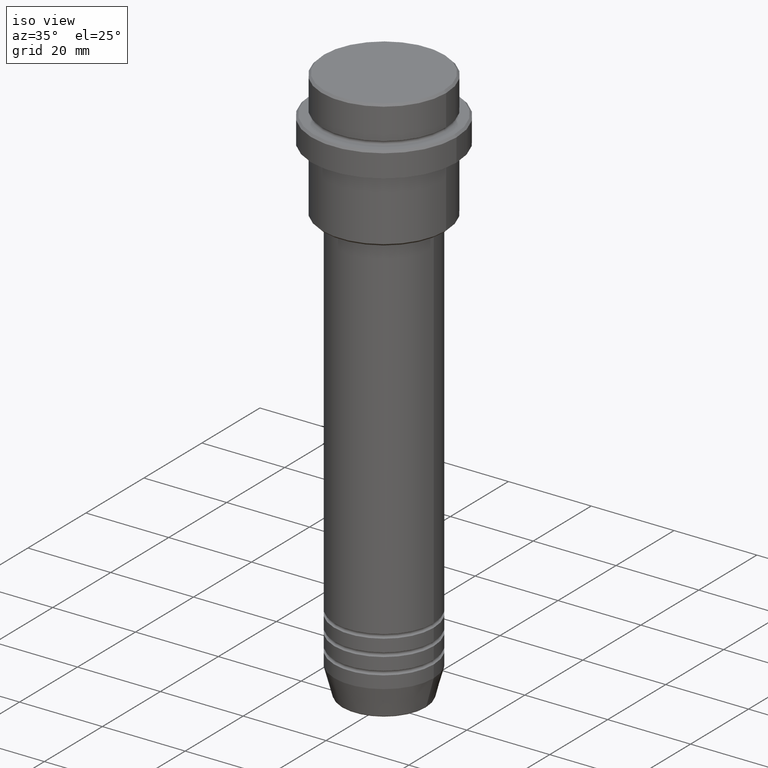
[diagram: clean part render]
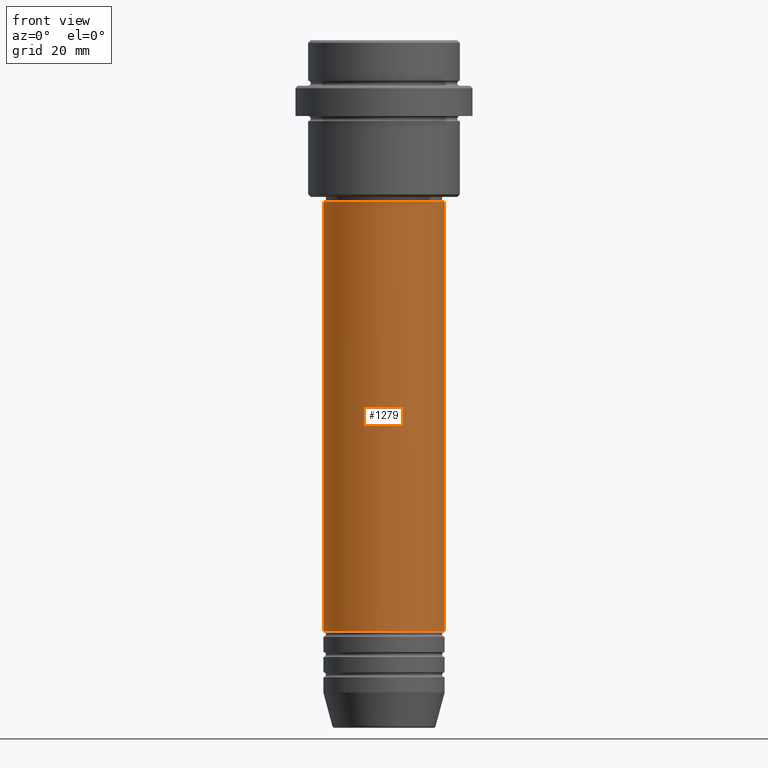
[diagram: tour spotlight — one face highlighted and labeled with its STEP entity id]
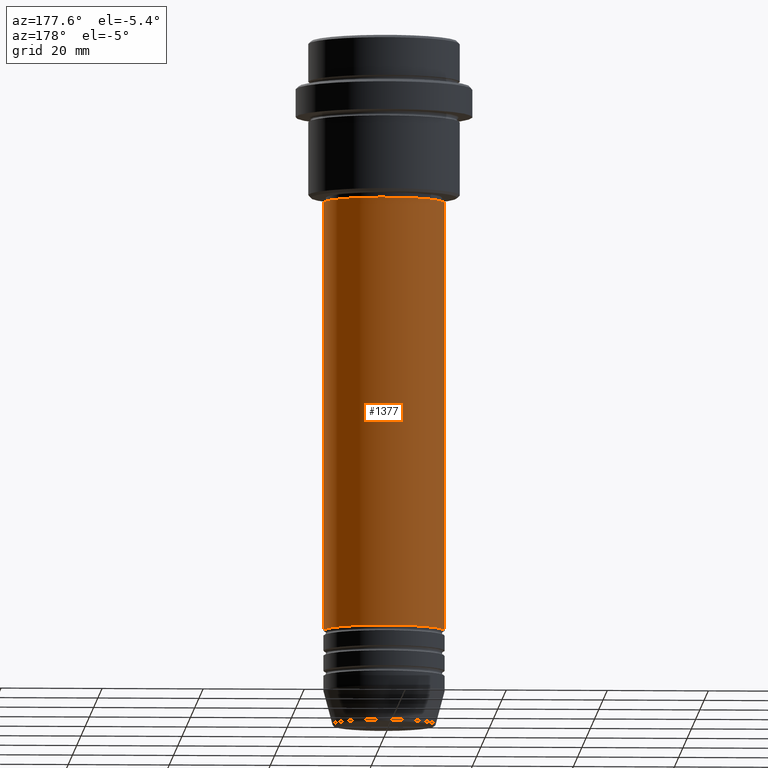
[diagram: tour spotlight — one face highlighted and labeled with its STEP entity id]
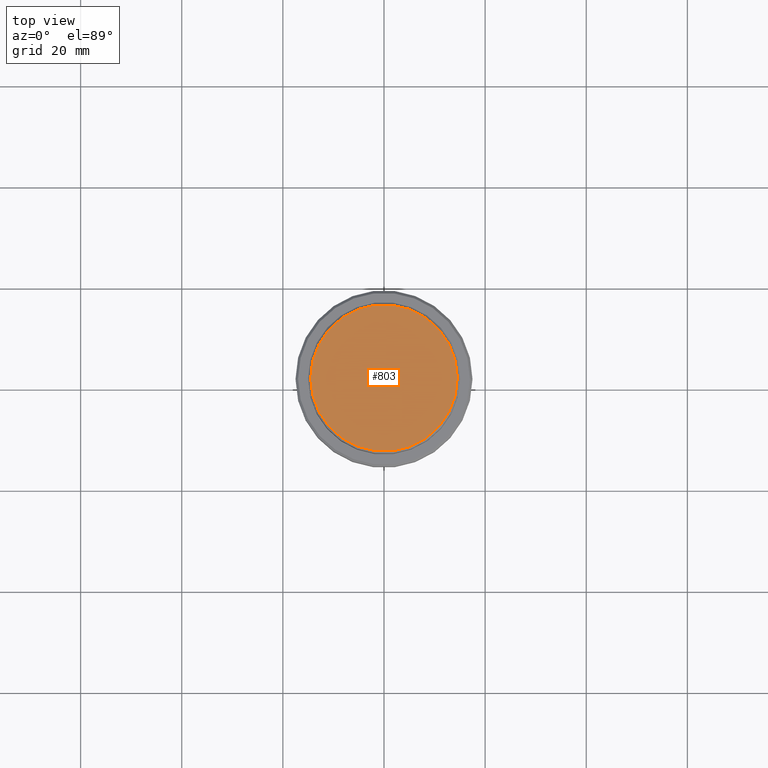
[diagram: tour spotlight — one face highlighted and labeled with its STEP entity id]
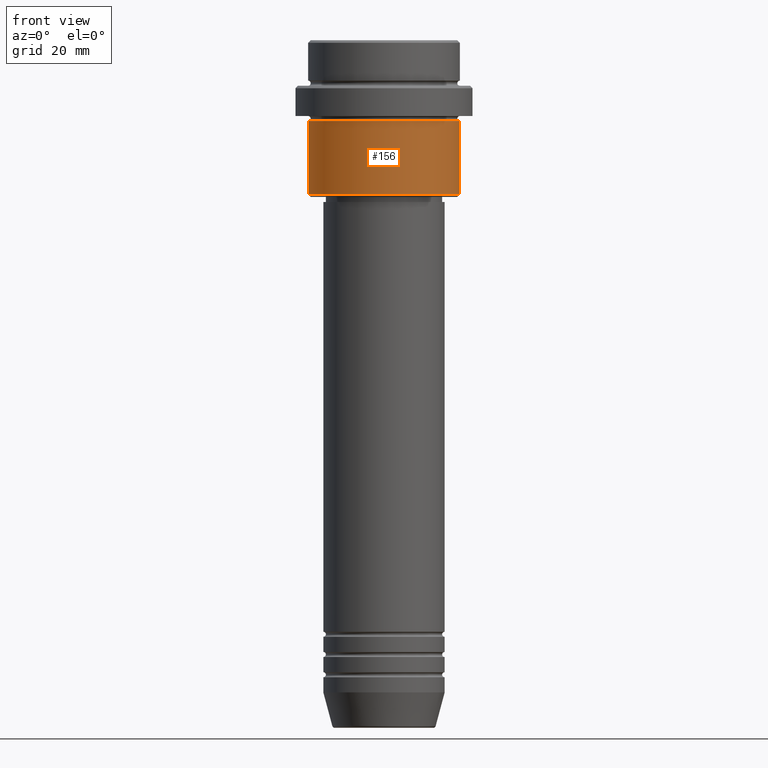
[diagram: tour spotlight — one face highlighted and labeled with its STEP entity id]
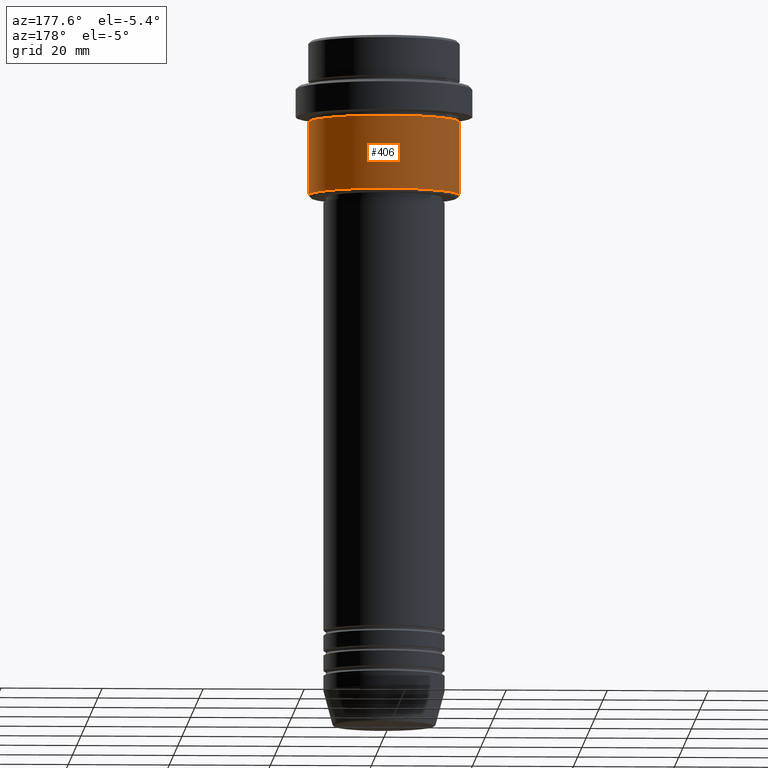
[diagram: tour spotlight — one face highlighted and labeled with its STEP entity id]
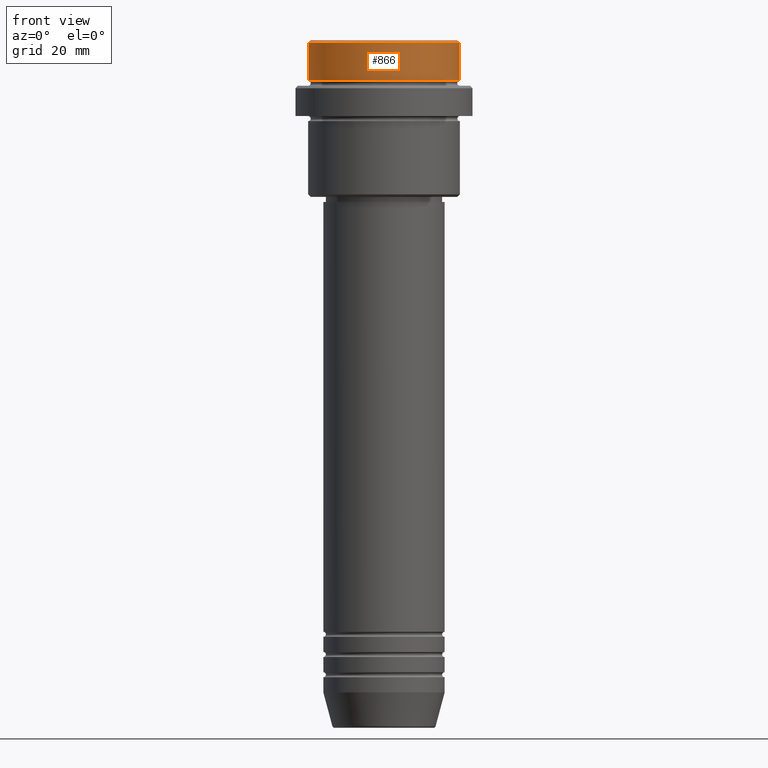
[diagram: tour spotlight — one face highlighted and labeled with its STEP entity id]
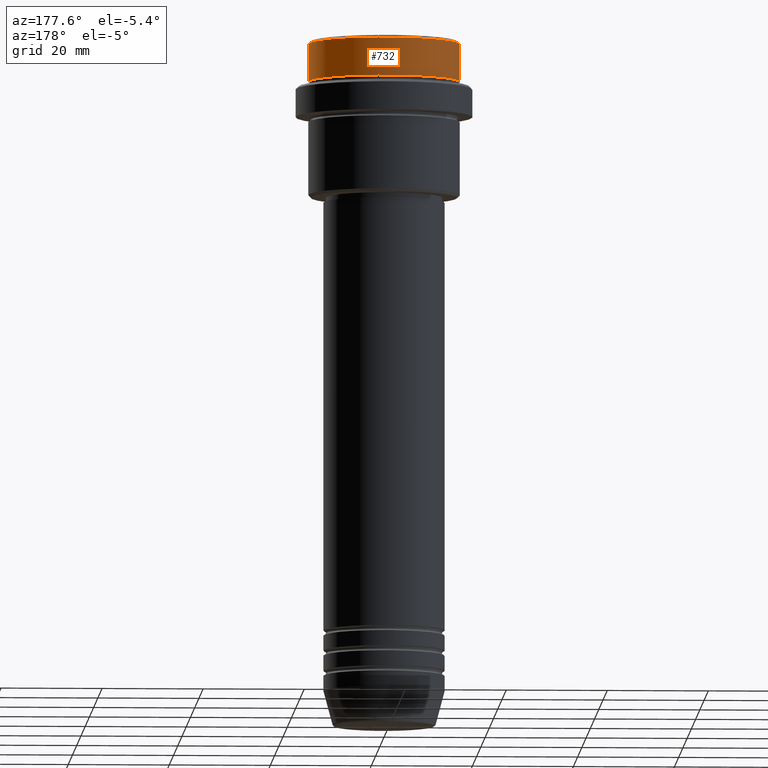
[diagram: tour spotlight — one face highlighted and labeled with its STEP entity id]
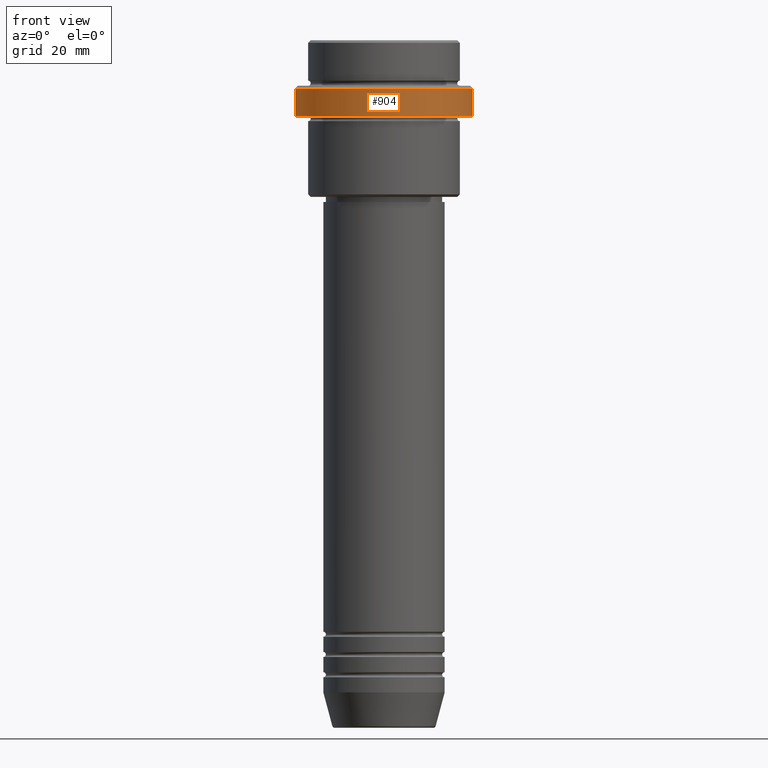
[diagram: tour spotlight — one face highlighted and labeled with its STEP entity id]
A machine part: a face-by-face anatomy tour. The part has 52 B-rep faces; the first image is the clean iso view, then the 8 largest visible faces are spotlighted one at a time (largest first), each with its STEP entity span.

Face 1 — front view, entity #1279. In plain terms, the highlighted cylindrical surface (partial cylindrical patch) has radius 12 mm, axis along (-0, -0, 1).
Definition (entity closure, byte-faithful):
#30 = CARTESIAN_POINT ( 'NONE',  ( 12.00000000000000000, 0.000000000000000000, 0.000000000000000000 ) ) ;
#94 = VERTEX_POINT ( 'NONE', #99 ) ;
#99 = CARTESIAN_POINT ( 'NONE',  ( 11.99999999999999822, 0.000000000000000000, -32.00000000000000000 ) ) ;
#127 = CARTESIAN_POINT ( 'NONE',  ( -12.00000000000000000, 1.469576158976823947E-15, -116.9999999999999005 ) ) ;
#226 = CARTESIAN_POINT ( 'NONE',  ( 0.000000000000000000, 0.000000000000000000, 0.000000000000000000 ) ) ;
#314 = DIRECTION ( 'NONE',  ( -0.000000000000000000, -0.000000000000000000, 1.000000000000000000 ) ) ;
#344 = DIRECTION ( 'NONE',  ( 1.000000000000000000, 0.000000000000000000, 0.000000000000000000 ) ) ;
#356 = FACE_OUTER_BOUND ( 'NONE', #1340, .T. ) ;
#362 = EDGE_CURVE ( 'NONE', #989, #94, #994, .T. ) ;
#384 = ORIENTED_EDGE ( 'NONE', *, *, #1057, .F. ) ;
#424 = CARTESIAN_POINT ( 'NONE',  ( 0.000000000000000000, 0.000000000000000000, -116.9999999999999005 ) ) ;
#426 = AXIS2_PLACEMENT_3D ( 'NONE', #589, #567, #344 ) ;
#471 = AXIS2_PLACEMENT_3D ( 'NONE', #424, #645, #1198 ) ;
#567 = DIRECTION ( 'NONE',  ( -0.000000000000000000, -0.000000000000000000, 1.000000000000000000 ) ) ;
#583 = DIRECTION ( 'NONE',  ( -0.000000000000000000, -0.000000000000000000, 1.000000000000000000 ) ) ;
#589 = CARTESIAN_POINT ( 'NONE',  ( 0.000000000000000000, 0.000000000000000000, -32.00000000000000000 ) ) ;
#645 = DIRECTION ( 'NONE',  ( -0.000000000000000000, -0.000000000000000000, 1.000000000000000000 ) ) ;
#655 = ORIENTED_EDGE ( 'NONE', *, *, #1317, .F. ) ;
#716 = EDGE_CURVE ( 'NONE', #748, #989, #1156, .T. ) ;
#748 = VERTEX_POINT ( 'NONE', #127 ) ;
#795 = DIRECTION ( 'NONE',  ( -0.000000000000000000, -0.000000000000000000, 1.000000000000000000 ) ) ;
#845 = VECTOR ( 'NONE', #795, 1000.000000000000000 ) ;
#849 = CIRCLE ( 'NONE', #426, 11.99999999999999822 ) ;
#853 = CARTESIAN_POINT ( 'NONE',  ( -12.00000000000000000, 1.469576158976823947E-15, 0.000000000000000000 ) ) ;
#896 = VERTEX_POINT ( 'NONE', #1249 ) ;
#989 = VERTEX_POINT ( 'NONE', #1265 ) ;
#994 = LINE ( 'NONE', #30, #845 ) ;
#1057 = EDGE_CURVE ( 'NONE', #748, #896, #1403, .T. ) ;
#1121 = ORIENTED_EDGE ( 'NONE', *, *, #716, .T. ) ;
#1123 = DIRECTION ( 'NONE',  ( 1.000000000000000000, 0.000000000000000000, 0.000000000000000000 ) ) ;
#1135 = VECTOR ( 'NONE', #314, 1000.000000000000000 ) ;
#1156 = CIRCLE ( 'NONE', #471, 12.00000000000000000 ) ;
#1198 = DIRECTION ( 'NONE',  ( 1.000000000000000000, 0.000000000000000000, 0.000000000000000000 ) ) ;
#1206 = CYLINDRICAL_SURFACE ( 'NONE', #1281, 12.00000000000000000 ) ;
#1249 = CARTESIAN_POINT ( 'NONE',  ( -11.99999999999999822, 1.469576158976823750E-15, -32.00000000000000000 ) ) ;
#1265 = CARTESIAN_POINT ( 'NONE',  ( 12.00000000000000000, 0.000000000000000000, -116.9999999999999005 ) ) ;
#1279 = ADVANCED_FACE ( 'NONE', ( #356 ), #1206, .T. ) ;
#1281 = AXIS2_PLACEMENT_3D ( 'NONE', #226, #583, #1123 ) ;
#1317 = EDGE_CURVE ( 'NONE', #896, #94, #849, .T. ) ;
#1340 = EDGE_LOOP ( 'NONE', ( #384, #1121, #1391, #655 ) ) ;
#1391 = ORIENTED_EDGE ( 'NONE', *, *, #362, .T. ) ;
#1403 = LINE ( 'NONE', #853, #1135 ) ;

Face 2 — auxiliary view, entity #1377. In plain terms, the highlighted cylindrical surface (partial cylindrical patch) has radius 12 mm, axis along (-0, -0, 1).
Definition (entity closure, byte-faithful):
#30 = CARTESIAN_POINT ( 'NONE',  ( 12.00000000000000000, 0.000000000000000000, 0.000000000000000000 ) ) ;
#75 = FACE_OUTER_BOUND ( 'NONE', #1014, .T. ) ;
#94 = VERTEX_POINT ( 'NONE', #99 ) ;
#99 = CARTESIAN_POINT ( 'NONE',  ( 11.99999999999999822, 0.000000000000000000, -32.00000000000000000 ) ) ;
#110 = AXIS2_PLACEMENT_3D ( 'NONE', #507, #725, #940 ) ;
#114 = EDGE_CURVE ( 'NONE', #989, #748, #420, .T. ) ;
#127 = CARTESIAN_POINT ( 'NONE',  ( -12.00000000000000000, 1.469576158976823947E-15, -116.9999999999999005 ) ) ;
#228 = ORIENTED_EDGE ( 'NONE', *, *, #560, .F. ) ;
#272 = CARTESIAN_POINT ( 'NONE',  ( 0.000000000000000000, 0.000000000000000000, -116.9999999999999005 ) ) ;
#314 = DIRECTION ( 'NONE',  ( -0.000000000000000000, -0.000000000000000000, 1.000000000000000000 ) ) ;
#328 = AXIS2_PLACEMENT_3D ( 'NONE', #272, #1141, #1241 ) ;
#362 = EDGE_CURVE ( 'NONE', #989, #94, #994, .T. ) ;
#420 = CIRCLE ( 'NONE', #328, 12.00000000000000000 ) ;
#507 = CARTESIAN_POINT ( 'NONE',  ( 0.000000000000000000, 0.000000000000000000, -32.00000000000000000 ) ) ;
#532 = AXIS2_PLACEMENT_3D ( 'NONE', #1361, #914, #821 ) ;
#560 = EDGE_CURVE ( 'NONE', #94, #896, #1319, .T. ) ;
#725 = DIRECTION ( 'NONE',  ( -0.000000000000000000, -0.000000000000000000, 1.000000000000000000 ) ) ;
#748 = VERTEX_POINT ( 'NONE', #127 ) ;
#795 = DIRECTION ( 'NONE',  ( -0.000000000000000000, -0.000000000000000000, 1.000000000000000000 ) ) ;
#807 = ORIENTED_EDGE ( 'NONE', *, *, #1057, .T. ) ;
#821 = DIRECTION ( 'NONE',  ( 1.000000000000000000, 0.000000000000000000, 0.000000000000000000 ) ) ;
#845 = VECTOR ( 'NONE', #795, 1000.000000000000000 ) ;
#853 = CARTESIAN_POINT ( 'NONE',  ( -12.00000000000000000, 1.469576158976823947E-15, 0.000000000000000000 ) ) ;
#896 = VERTEX_POINT ( 'NONE', #1249 ) ;
#914 = DIRECTION ( 'NONE',  ( -0.000000000000000000, -0.000000000000000000, 1.000000000000000000 ) ) ;
#940 = DIRECTION ( 'NONE',  ( 1.000000000000000000, 0.000000000000000000, 0.000000000000000000 ) ) ;
#989 = VERTEX_POINT ( 'NONE', #1265 ) ;
#994 = LINE ( 'NONE', #30, #845 ) ;
#1014 = EDGE_LOOP ( 'NONE', ( #1120, #807, #228, #1383 ) ) ;
#1057 = EDGE_CURVE ( 'NONE', #748, #896, #1403, .T. ) ;
#1120 = ORIENTED_EDGE ( 'NONE', *, *, #114, .T. ) ;
#1135 = VECTOR ( 'NONE', #314, 1000.000000000000000 ) ;
#1141 = DIRECTION ( 'NONE',  ( -0.000000000000000000, -0.000000000000000000, 1.000000000000000000 ) ) ;
#1241 = DIRECTION ( 'NONE',  ( 1.000000000000000000, 0.000000000000000000, 0.000000000000000000 ) ) ;
#1249 = CARTESIAN_POINT ( 'NONE',  ( -11.99999999999999822, 1.469576158976823750E-15, -32.00000000000000000 ) ) ;
#1265 = CARTESIAN_POINT ( 'NONE',  ( 12.00000000000000000, 0.000000000000000000, -116.9999999999999005 ) ) ;
#1268 = CYLINDRICAL_SURFACE ( 'NONE', #532, 12.00000000000000000 ) ;
#1319 = CIRCLE ( 'NONE', #110, 11.99999999999999822 ) ;
#1361 = CARTESIAN_POINT ( 'NONE',  ( 0.000000000000000000, 0.000000000000000000, 0.000000000000000000 ) ) ;
#1377 = ADVANCED_FACE ( 'NONE', ( #75 ), #1268, .T. ) ;
#1383 = ORIENTED_EDGE ( 'NONE', *, *, #362, .F. ) ;
#1403 = LINE ( 'NONE', #853, #1135 ) ;

Face 3 — top view, entity #803. In plain terms, the highlighted planar face has unit normal (0, -0, 1).
Definition (entity closure, byte-faithful):
#20 = DIRECTION ( 'NONE',  ( 0.000000000000000000, -0.000000000000000000, 1.000000000000000000 ) ) ;
#116 = DIRECTION ( 'NONE',  ( 1.000000000000000000, 0.000000000000000000, 0.000000000000000000 ) ) ;
#165 = VERTEX_POINT ( 'NONE', #1074 ) ;
#227 = FACE_OUTER_BOUND ( 'NONE', #1264, .T. ) ;
#403 = AXIS2_PLACEMENT_3D ( 'NONE', #510, #1142, #831 ) ;
#422 = CARTESIAN_POINT ( 'NONE',  ( 14.49999999999999645, 1.806354028742345802E-15, 0.000000000000000000 ) ) ;
#510 = CARTESIAN_POINT ( 'NONE',  ( 0.000000000000000000, 0.000000000000000000, 0.000000000000000000 ) ) ;
#553 = CARTESIAN_POINT ( 'NONE',  ( 0.000000000000000000, 0.000000000000000000, 0.000000000000000000 ) ) ;
#585 = CARTESIAN_POINT ( 'NONE',  ( 0.000000000000000000, 0.000000000000000000, 0.000000000000000000 ) ) ;
#668 = EDGE_CURVE ( 'NONE', #1152, #165, #1081, .T. ) ;
#677 = DIRECTION ( 'NONE',  ( 1.000000000000000000, 0.000000000000000000, 0.000000000000000000 ) ) ;
#803 = ADVANCED_FACE ( 'NONE', ( #227 ), #1020, .T. ) ;
#831 = DIRECTION ( 'NONE',  ( 1.000000000000000000, 0.000000000000000000, 0.000000000000000000 ) ) ;
#846 = AXIS2_PLACEMENT_3D ( 'NONE', #553, #970, #116 ) ;
#878 = EDGE_CURVE ( 'NONE', #165, #1152, #1259, .T. ) ;
#933 = AXIS2_PLACEMENT_3D ( 'NONE', #585, #20, #677 ) ;
#970 = DIRECTION ( 'NONE',  ( -0.000000000000000000, -0.000000000000000000, 1.000000000000000000 ) ) ;
#1020 = PLANE ( 'NONE',  #933 ) ;
#1047 = ORIENTED_EDGE ( 'NONE', *, *, #878, .T. ) ;
#1074 = CARTESIAN_POINT ( 'NONE',  ( -14.49999999999999645, 0.000000000000000000, 0.000000000000000000 ) ) ;
#1081 = CIRCLE ( 'NONE', #846, 14.49999999999999645 ) ;
#1137 = ORIENTED_EDGE ( 'NONE', *, *, #668, .T. ) ;
#1142 = DIRECTION ( 'NONE',  ( -0.000000000000000000, -0.000000000000000000, 1.000000000000000000 ) ) ;
#1152 = VERTEX_POINT ( 'NONE', #422 ) ;
#1259 = CIRCLE ( 'NONE', #403, 14.49999999999999645 ) ;
#1264 = EDGE_LOOP ( 'NONE', ( #1047, #1137 ) ) ;

Face 4 — front view, entity #156. In plain terms, the highlighted cylindrical surface (partial cylindrical patch) has radius 15 mm, axis along (-0, -0, 1).
Definition (entity closure, byte-faithful):
#15 = CARTESIAN_POINT ( 'NONE',  ( 15.00000000000000000, 0.000000000000000000, 0.000000000000000000 ) ) ;
#106 = DIRECTION ( 'NONE',  ( -0.000000000000000000, -0.000000000000000000, 1.000000000000000000 ) ) ;
#156 = ADVANCED_FACE ( 'NONE', ( #316 ), #343, .T. ) ;
#158 = EDGE_CURVE ( 'NONE', #361, #498, #1078, .T. ) ;
#189 = ORIENTED_EDGE ( 'NONE', *, *, #342, .T. ) ;
#199 = CARTESIAN_POINT ( 'NONE',  ( -15.00000000000000000, 1.836970198721029589E-15, -30.50000000000000355 ) ) ;
#214 = AXIS2_PLACEMENT_3D ( 'NONE', #539, #634, #898 ) ;
#236 = DIRECTION ( 'NONE',  ( -0.000000000000000000, -0.000000000000000000, 1.000000000000000000 ) ) ;
#239 = CARTESIAN_POINT ( 'NONE',  ( -15.00000000000000355, 1.836970198721029983E-15, -16.00000000000000000 ) ) ;
#307 = CARTESIAN_POINT ( 'NONE',  ( 0.000000000000000000, 0.000000000000000000, -16.00000000000000000 ) ) ;
#316 = FACE_OUTER_BOUND ( 'NONE', #1054, .T. ) ;
#342 = EDGE_CURVE ( 'NONE', #703, #361, #375, .T. ) ;
#343 = CYLINDRICAL_SURFACE ( 'NONE', #214, 15.00000000000000000 ) ;
#361 = VERTEX_POINT ( 'NONE', #891 ) ;
#374 = VECTOR ( 'NONE', #1195, 1000.000000000000000 ) ;
#375 = CIRCLE ( 'NONE', #550, 15.00000000000000000 ) ;
#393 = ORIENTED_EDGE ( 'NONE', *, *, #1070, .F. ) ;
#459 = CARTESIAN_POINT ( 'NONE',  ( 0.000000000000000000, 0.000000000000000000, -30.50000000000000355 ) ) ;
#489 = ORIENTED_EDGE ( 'NONE', *, *, #1245, .F. ) ;
#498 = VERTEX_POINT ( 'NONE', #1044 ) ;
#530 = CIRCLE ( 'NONE', #805, 15.00000000000000178 ) ;
#539 = CARTESIAN_POINT ( 'NONE',  ( 0.000000000000000000, 0.000000000000000000, 0.000000000000000000 ) ) ;
#550 = AXIS2_PLACEMENT_3D ( 'NONE', #459, #236, #1250 ) ;
#556 = VECTOR ( 'NONE', #808, 1000.000000000000000 ) ;
#634 = DIRECTION ( 'NONE',  ( -0.000000000000000000, -0.000000000000000000, 1.000000000000000000 ) ) ;
#703 = VERTEX_POINT ( 'NONE', #199 ) ;
#805 = AXIS2_PLACEMENT_3D ( 'NONE', #307, #106, #1197 ) ;
#808 = DIRECTION ( 'NONE',  ( -0.000000000000000000, -0.000000000000000000, 1.000000000000000000 ) ) ;
#891 = CARTESIAN_POINT ( 'NONE',  ( 15.00000000000000000, 0.000000000000000000, -30.50000000000000355 ) ) ;
#898 = DIRECTION ( 'NONE',  ( 1.000000000000000000, 0.000000000000000000, 0.000000000000000000 ) ) ;
#1044 = CARTESIAN_POINT ( 'NONE',  ( 15.00000000000000178, 0.000000000000000000, -16.00000000000000000 ) ) ;
#1054 = EDGE_LOOP ( 'NONE', ( #489, #189, #1189, #393 ) ) ;
#1070 = EDGE_CURVE ( 'NONE', #1248, #498, #530, .T. ) ;
#1078 = LINE ( 'NONE', #15, #374 ) ;
#1189 = ORIENTED_EDGE ( 'NONE', *, *, #158, .T. ) ;
#1195 = DIRECTION ( 'NONE',  ( -0.000000000000000000, -0.000000000000000000, 1.000000000000000000 ) ) ;
#1197 = DIRECTION ( 'NONE',  ( 1.000000000000000000, 0.000000000000000000, 0.000000000000000000 ) ) ;
#1245 = EDGE_CURVE ( 'NONE', #703, #1248, #1347, .T. ) ;
#1248 = VERTEX_POINT ( 'NONE', #239 ) ;
#1250 = DIRECTION ( 'NONE',  ( -1.000000000000000000, 0.000000000000000000, 0.000000000000000000 ) ) ;
#1312 = CARTESIAN_POINT ( 'NONE',  ( -15.00000000000000000, 1.836970198721029589E-15, 0.000000000000000000 ) ) ;
#1347 = LINE ( 'NONE', #1312, #556 ) ;

Face 5 — auxiliary view, entity #406. In plain terms, the highlighted cylindrical surface (partial cylindrical patch) has radius 15 mm, axis along (-0, -0, 1).
Definition (entity closure, byte-faithful):
#15 = CARTESIAN_POINT ( 'NONE',  ( 15.00000000000000000, 0.000000000000000000, 0.000000000000000000 ) ) ;
#39 = EDGE_LOOP ( 'NONE', ( #538, #330, #1342, #1086 ) ) ;
#78 = EDGE_CURVE ( 'NONE', #498, #1248, #1034, .T. ) ;
#158 = EDGE_CURVE ( 'NONE', #361, #498, #1078, .T. ) ;
#185 = DIRECTION ( 'NONE',  ( 1.000000000000000000, 0.000000000000000000, 0.000000000000000000 ) ) ;
#199 = CARTESIAN_POINT ( 'NONE',  ( -15.00000000000000000, 1.836970198721029589E-15, -30.50000000000000355 ) ) ;
#239 = CARTESIAN_POINT ( 'NONE',  ( -15.00000000000000355, 1.836970198721029983E-15, -16.00000000000000000 ) ) ;
#249 = DIRECTION ( 'NONE',  ( -1.000000000000000000, 0.000000000000000000, 0.000000000000000000 ) ) ;
#251 = DIRECTION ( 'NONE',  ( -0.000000000000000000, -0.000000000000000000, 1.000000000000000000 ) ) ;
#264 = FACE_OUTER_BOUND ( 'NONE', #39, .T. ) ;
#330 = ORIENTED_EDGE ( 'NONE', *, *, #1245, .T. ) ;
#345 = DIRECTION ( 'NONE',  ( -0.000000000000000000, -0.000000000000000000, 1.000000000000000000 ) ) ;
#361 = VERTEX_POINT ( 'NONE', #891 ) ;
#374 = VECTOR ( 'NONE', #1195, 1000.000000000000000 ) ;
#406 = ADVANCED_FACE ( 'NONE', ( #264 ), #680, .T. ) ;
#498 = VERTEX_POINT ( 'NONE', #1044 ) ;
#527 = CIRCLE ( 'NONE', #1322, 15.00000000000000000 ) ;
#538 = ORIENTED_EDGE ( 'NONE', *, *, #745, .T. ) ;
#556 = VECTOR ( 'NONE', #808, 1000.000000000000000 ) ;
#580 = CARTESIAN_POINT ( 'NONE',  ( 0.000000000000000000, 0.000000000000000000, 0.000000000000000000 ) ) ;
#590 = CARTESIAN_POINT ( 'NONE',  ( 0.000000000000000000, 0.000000000000000000, -30.50000000000000355 ) ) ;
#600 = AXIS2_PLACEMENT_3D ( 'NONE', #580, #251, #912 ) ;
#680 = CYLINDRICAL_SURFACE ( 'NONE', #600, 15.00000000000000000 ) ;
#703 = VERTEX_POINT ( 'NONE', #199 ) ;
#745 = EDGE_CURVE ( 'NONE', #361, #703, #527, .T. ) ;
#808 = DIRECTION ( 'NONE',  ( -0.000000000000000000, -0.000000000000000000, 1.000000000000000000 ) ) ;
#891 = CARTESIAN_POINT ( 'NONE',  ( 15.00000000000000000, 0.000000000000000000, -30.50000000000000355 ) ) ;
#912 = DIRECTION ( 'NONE',  ( 1.000000000000000000, 0.000000000000000000, 0.000000000000000000 ) ) ;
#1034 = CIRCLE ( 'NONE', #1059, 15.00000000000000178 ) ;
#1044 = CARTESIAN_POINT ( 'NONE',  ( 15.00000000000000178, 0.000000000000000000, -16.00000000000000000 ) ) ;
#1059 = AXIS2_PLACEMENT_3D ( 'NONE', #1173, #1270, #185 ) ;
#1078 = LINE ( 'NONE', #15, #374 ) ;
#1086 = ORIENTED_EDGE ( 'NONE', *, *, #158, .F. ) ;
#1173 = CARTESIAN_POINT ( 'NONE',  ( 0.000000000000000000, 0.000000000000000000, -16.00000000000000000 ) ) ;
#1195 = DIRECTION ( 'NONE',  ( -0.000000000000000000, -0.000000000000000000, 1.000000000000000000 ) ) ;
#1245 = EDGE_CURVE ( 'NONE', #703, #1248, #1347, .T. ) ;
#1248 = VERTEX_POINT ( 'NONE', #239 ) ;
#1270 = DIRECTION ( 'NONE',  ( -0.000000000000000000, -0.000000000000000000, 1.000000000000000000 ) ) ;
#1312 = CARTESIAN_POINT ( 'NONE',  ( -15.00000000000000000, 1.836970198721029589E-15, 0.000000000000000000 ) ) ;
#1322 = AXIS2_PLACEMENT_3D ( 'NONE', #590, #345, #249 ) ;
#1342 = ORIENTED_EDGE ( 'NONE', *, *, #78, .F. ) ;
#1347 = LINE ( 'NONE', #1312, #556 ) ;

Face 6 — front view, entity #866. In plain terms, the highlighted cylindrical surface (partial cylindrical patch) has radius 15 mm, axis along (-0, -0, 1).
Definition (entity closure, byte-faithful):
#23 = EDGE_CURVE ( 'NONE', #946, #744, #707, .T. ) ;
#29 = DIRECTION ( 'NONE',  ( -0.000000000000000000, -0.000000000000000000, 1.000000000000000000 ) ) ;
#108 = CARTESIAN_POINT ( 'NONE',  ( 0.000000000000000000, 0.000000000000000000, -0.4999999999999970024 ) ) ;
#132 = VERTEX_POINT ( 'NONE', #631 ) ;
#169 = EDGE_LOOP ( 'NONE', ( #1242, #1269, #1170, #372 ) ) ;
#233 = CARTESIAN_POINT ( 'NONE',  ( 0.000000000000000000, 0.000000000000000000, 0.000000000000000000 ) ) ;
#338 = FACE_OUTER_BOUND ( 'NONE', #169, .T. ) ;
#372 = ORIENTED_EDGE ( 'NONE', *, *, #743, .T. ) ;
#450 = DIRECTION ( 'NONE',  ( 1.000000000000000000, 0.000000000000000000, 0.000000000000000000 ) ) ;
#465 = CARTESIAN_POINT ( 'NONE',  ( 15.00000000000000000, 0.000000000000000000, -7.999999999999998224 ) ) ;
#494 = DIRECTION ( 'NONE',  ( -0.000000000000000000, -0.000000000000000000, 1.000000000000000000 ) ) ;
#568 = EDGE_CURVE ( 'NONE', #744, #132, #1169, .T. ) ;
#578 = CIRCLE ( 'NONE', #1373, 15.00000000000000000 ) ;
#604 = CARTESIAN_POINT ( 'NONE',  ( -15.00000000000000000, 1.836970198721029589E-15, -7.999999999999998224 ) ) ;
#624 = DIRECTION ( 'NONE',  ( -0.000000000000000000, -0.000000000000000000, 1.000000000000000000 ) ) ;
#631 = CARTESIAN_POINT ( 'NONE',  ( 15.00000000000000000, 0.000000000000000000, -0.4999999999999970024 ) ) ;
#685 = CARTESIAN_POINT ( 'NONE',  ( -15.00000000000000000, 1.836970198721029589E-15, -0.4999999999999970024 ) ) ;
#707 = CIRCLE ( 'NONE', #1275, 15.00000000000000000 ) ;
#729 = DIRECTION ( 'NONE',  ( -0.000000000000000000, -0.000000000000000000, 1.000000000000000000 ) ) ;
#743 = EDGE_CURVE ( 'NONE', #132, #791, #578, .T. ) ;
#744 = VERTEX_POINT ( 'NONE', #465 ) ;
#754 = DIRECTION ( 'NONE',  ( 1.000000000000000000, 0.000000000000000000, 0.000000000000000000 ) ) ;
#791 = VERTEX_POINT ( 'NONE', #685 ) ;
#834 = CARTESIAN_POINT ( 'NONE',  ( 0.000000000000000000, 0.000000000000000000, -7.999999999999998224 ) ) ;
#862 = DIRECTION ( 'NONE',  ( 0.000000000000000000, 0.000000000000000000, -1.000000000000000000 ) ) ;
#866 = ADVANCED_FACE ( 'NONE', ( #338 ), #1215, .T. ) ;
#889 = VECTOR ( 'NONE', #729, 1000.000000000000000 ) ;
#910 = VECTOR ( 'NONE', #494, 1000.000000000000000 ) ;
#925 = CARTESIAN_POINT ( 'NONE',  ( 15.00000000000000000, 0.000000000000000000, 0.000000000000000000 ) ) ;
#946 = VERTEX_POINT ( 'NONE', #604 ) ;
#1016 = EDGE_CURVE ( 'NONE', #946, #791, #1271, .T. ) ;
#1027 = CARTESIAN_POINT ( 'NONE',  ( -15.00000000000000000, 1.836970198721029589E-15, 0.000000000000000000 ) ) ;
#1063 = AXIS2_PLACEMENT_3D ( 'NONE', #233, #29, #450 ) ;
#1169 = LINE ( 'NONE', #925, #910 ) ;
#1170 = ORIENTED_EDGE ( 'NONE', *, *, #568, .T. ) ;
#1208 = DIRECTION ( 'NONE',  ( 1.000000000000000000, 0.000000000000000000, 0.000000000000000000 ) ) ;
#1215 = CYLINDRICAL_SURFACE ( 'NONE', #1063, 15.00000000000000000 ) ;
#1242 = ORIENTED_EDGE ( 'NONE', *, *, #1016, .F. ) ;
#1269 = ORIENTED_EDGE ( 'NONE', *, *, #23, .T. ) ;
#1271 = LINE ( 'NONE', #1027, #889 ) ;
#1275 = AXIS2_PLACEMENT_3D ( 'NONE', #834, #624, #754 ) ;
#1373 = AXIS2_PLACEMENT_3D ( 'NONE', #108, #862, #1208 ) ;

Face 7 — auxiliary view, entity #732. In plain terms, the highlighted cylindrical surface (partial cylindrical patch) has radius 15 mm, axis along (-0, -0, 1).
Definition (entity closure, byte-faithful):
#128 = ORIENTED_EDGE ( 'NONE', *, *, #924, .T. ) ;
#132 = VERTEX_POINT ( 'NONE', #631 ) ;
#273 = CIRCLE ( 'NONE', #425, 15.00000000000000000 ) ;
#274 = DIRECTION ( 'NONE',  ( 1.000000000000000000, 0.000000000000000000, 0.000000000000000000 ) ) ;
#329 = FACE_OUTER_BOUND ( 'NONE', #408, .T. ) ;
#370 = ORIENTED_EDGE ( 'NONE', *, *, #1016, .T. ) ;
#388 = CARTESIAN_POINT ( 'NONE',  ( 0.000000000000000000, 0.000000000000000000, -7.999999999999998224 ) ) ;
#391 = ORIENTED_EDGE ( 'NONE', *, *, #568, .F. ) ;
#394 = DIRECTION ( 'NONE',  ( 0.000000000000000000, 0.000000000000000000, -1.000000000000000000 ) ) ;
#408 = EDGE_LOOP ( 'NONE', ( #733, #370, #128, #391 ) ) ;
#425 = AXIS2_PLACEMENT_3D ( 'NONE', #741, #394, #493 ) ;
#465 = CARTESIAN_POINT ( 'NONE',  ( 15.00000000000000000, 0.000000000000000000, -7.999999999999998224 ) ) ;
#493 = DIRECTION ( 'NONE',  ( 1.000000000000000000, 0.000000000000000000, 0.000000000000000000 ) ) ;
#494 = DIRECTION ( 'NONE',  ( -0.000000000000000000, -0.000000000000000000, 1.000000000000000000 ) ) ;
#568 = EDGE_CURVE ( 'NONE', #744, #132, #1169, .T. ) ;
#604 = CARTESIAN_POINT ( 'NONE',  ( -15.00000000000000000, 1.836970198721029589E-15, -7.999999999999998224 ) ) ;
#631 = CARTESIAN_POINT ( 'NONE',  ( 15.00000000000000000, 0.000000000000000000, -0.4999999999999970024 ) ) ;
#638 = CARTESIAN_POINT ( 'NONE',  ( 0.000000000000000000, 0.000000000000000000, 0.000000000000000000 ) ) ;
#685 = CARTESIAN_POINT ( 'NONE',  ( -15.00000000000000000, 1.836970198721029589E-15, -0.4999999999999970024 ) ) ;
#729 = DIRECTION ( 'NONE',  ( -0.000000000000000000, -0.000000000000000000, 1.000000000000000000 ) ) ;
#732 = ADVANCED_FACE ( 'NONE', ( #329 ), #770, .T. ) ;
#733 = ORIENTED_EDGE ( 'NONE', *, *, #1001, .T. ) ;
#741 = CARTESIAN_POINT ( 'NONE',  ( 0.000000000000000000, 0.000000000000000000, -0.4999999999999970024 ) ) ;
#744 = VERTEX_POINT ( 'NONE', #465 ) ;
#770 = CYLINDRICAL_SURFACE ( 'NONE', #1346, 15.00000000000000000 ) ;
#791 = VERTEX_POINT ( 'NONE', #685 ) ;
#835 = DIRECTION ( 'NONE',  ( -0.000000000000000000, -0.000000000000000000, 1.000000000000000000 ) ) ;
#889 = VECTOR ( 'NONE', #729, 1000.000000000000000 ) ;
#910 = VECTOR ( 'NONE', #494, 1000.000000000000000 ) ;
#924 = EDGE_CURVE ( 'NONE', #791, #132, #273, .T. ) ;
#925 = CARTESIAN_POINT ( 'NONE',  ( 15.00000000000000000, 0.000000000000000000, 0.000000000000000000 ) ) ;
#946 = VERTEX_POINT ( 'NONE', #604 ) ;
#1001 = EDGE_CURVE ( 'NONE', #744, #946, #1323, .T. ) ;
#1016 = EDGE_CURVE ( 'NONE', #946, #791, #1271, .T. ) ;
#1027 = CARTESIAN_POINT ( 'NONE',  ( -15.00000000000000000, 1.836970198721029589E-15, 0.000000000000000000 ) ) ;
#1069 = DIRECTION ( 'NONE',  ( 1.000000000000000000, 0.000000000000000000, 0.000000000000000000 ) ) ;
#1169 = LINE ( 'NONE', #925, #910 ) ;
#1178 = DIRECTION ( 'NONE',  ( -0.000000000000000000, -0.000000000000000000, 1.000000000000000000 ) ) ;
#1184 = AXIS2_PLACEMENT_3D ( 'NONE', #388, #835, #274 ) ;
#1271 = LINE ( 'NONE', #1027, #889 ) ;
#1323 = CIRCLE ( 'NONE', #1184, 15.00000000000000000 ) ;
#1346 = AXIS2_PLACEMENT_3D ( 'NONE', #638, #1178, #1069 ) ;

Face 8 — front view, entity #904. In plain terms, the highlighted cylindrical surface (partial cylindrical patch) has radius 17.5 mm, axis along (-0, -0, 1).
Definition (entity closure, byte-faithful):
#26 = AXIS2_PLACEMENT_3D ( 'NONE', #1276, #923, #1132 ) ;
#31 = ORIENTED_EDGE ( 'NONE', *, *, #1048, .T. ) ;
#143 = VERTEX_POINT ( 'NONE', #371 ) ;
#146 = ORIENTED_EDGE ( 'NONE', *, *, #1309, .T. ) ;
#340 = CARTESIAN_POINT ( 'NONE',  ( 0.000000000000000000, 0.000000000000000000, -9.500000000000014211 ) ) ;
#355 = VECTOR ( 'NONE', #1090, 1000.000000000000000 ) ;
#371 = CARTESIAN_POINT ( 'NONE',  ( -17.50000000000000000, 2.143131898507868248E-15, -15.00000000000000000 ) ) ;
#407 = EDGE_CURVE ( 'NONE', #785, #1392, #779, .T. ) ;
#491 = CARTESIAN_POINT ( 'NONE',  ( -17.50000000000000000, 2.143131898507868248E-15, -9.500000000000014211 ) ) ;
#497 = VECTOR ( 'NONE', #1109, 1000.000000000000000 ) ;
#602 = AXIS2_PLACEMENT_3D ( 'NONE', #1056, #763, #649 ) ;
#649 = DIRECTION ( 'NONE',  ( 1.000000000000000000, 0.000000000000000000, 0.000000000000000000 ) ) ;
#671 = VERTEX_POINT ( 'NONE', #1290 ) ;
#687 = CIRCLE ( 'NONE', #602, 17.50000000000000000 ) ;
#709 = DIRECTION ( 'NONE',  ( 0.000000000000000000, 0.000000000000000000, -1.000000000000000000 ) ) ;
#719 = CYLINDRICAL_SURFACE ( 'NONE', #26, 17.50000000000000000 ) ;
#753 = ORIENTED_EDGE ( 'NONE', *, *, #407, .T. ) ;
#763 = DIRECTION ( 'NONE',  ( -0.000000000000000000, -0.000000000000000000, 1.000000000000000000 ) ) ;
#779 = CIRCLE ( 'NONE', #908, 17.50000000000000000 ) ;
#785 = VERTEX_POINT ( 'NONE', #992 ) ;
#789 = DIRECTION ( 'NONE',  ( 1.000000000000000000, 0.000000000000000000, 0.000000000000000000 ) ) ;
#800 = LINE ( 'NONE', #909, #497 ) ;
#812 = EDGE_CURVE ( 'NONE', #143, #1392, #800, .T. ) ;
#904 = ADVANCED_FACE ( 'NONE', ( #1380 ), #719, .T. ) ;
#908 = AXIS2_PLACEMENT_3D ( 'NONE', #340, #709, #789 ) ;
#909 = CARTESIAN_POINT ( 'NONE',  ( -17.50000000000000000, 2.143131898507868248E-15, 0.000000000000000000 ) ) ;
#923 = DIRECTION ( 'NONE',  ( -0.000000000000000000, -0.000000000000000000, 1.000000000000000000 ) ) ;
#952 = EDGE_LOOP ( 'NONE', ( #1118, #31, #146, #753 ) ) ;
#992 = CARTESIAN_POINT ( 'NONE',  ( 17.50000000000000000, 0.000000000000000000, -9.500000000000014211 ) ) ;
#1003 = CARTESIAN_POINT ( 'NONE',  ( 17.50000000000000000, 0.000000000000000000, 0.000000000000000000 ) ) ;
#1048 = EDGE_CURVE ( 'NONE', #143, #671, #687, .T. ) ;
#1056 = CARTESIAN_POINT ( 'NONE',  ( 0.000000000000000000, 0.000000000000000000, -15.00000000000000000 ) ) ;
#1090 = DIRECTION ( 'NONE',  ( -0.000000000000000000, -0.000000000000000000, 1.000000000000000000 ) ) ;
#1109 = DIRECTION ( 'NONE',  ( -0.000000000000000000, -0.000000000000000000, 1.000000000000000000 ) ) ;
#1118 = ORIENTED_EDGE ( 'NONE', *, *, #812, .F. ) ;
#1132 = DIRECTION ( 'NONE',  ( 1.000000000000000000, 0.000000000000000000, 0.000000000000000000 ) ) ;
#1276 = CARTESIAN_POINT ( 'NONE',  ( 0.000000000000000000, 0.000000000000000000, 0.000000000000000000 ) ) ;
#1290 = CARTESIAN_POINT ( 'NONE',  ( 17.50000000000000000, 0.000000000000000000, -15.00000000000000000 ) ) ;
#1309 = EDGE_CURVE ( 'NONE', #671, #785, #1331, .T. ) ;
#1331 = LINE ( 'NONE', #1003, #355 ) ;
#1380 = FACE_OUTER_BOUND ( 'NONE', #952, .T. ) ;
#1392 = VERTEX_POINT ( 'NONE', #491 ) ;